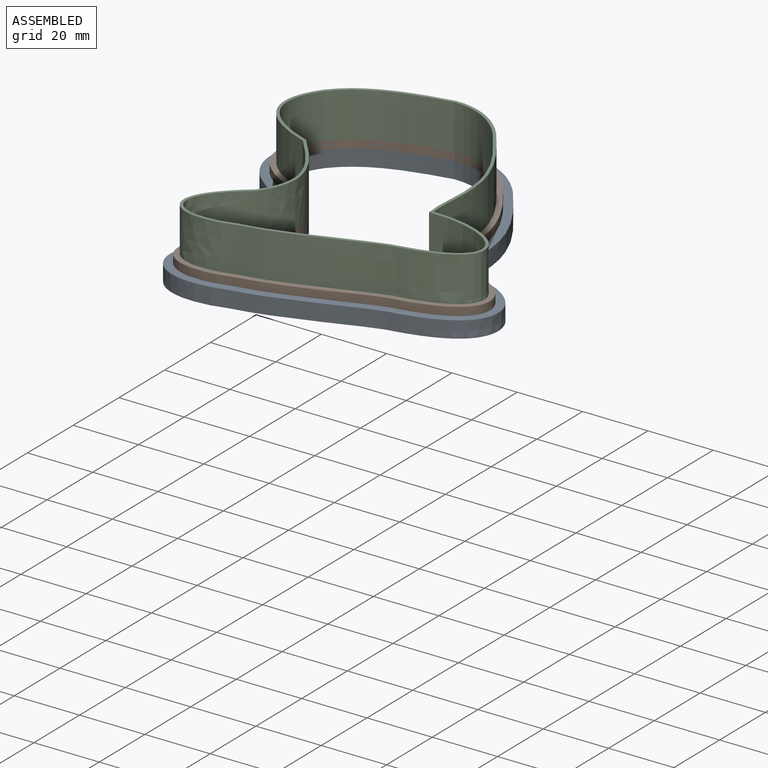
[diagram: assembled view]
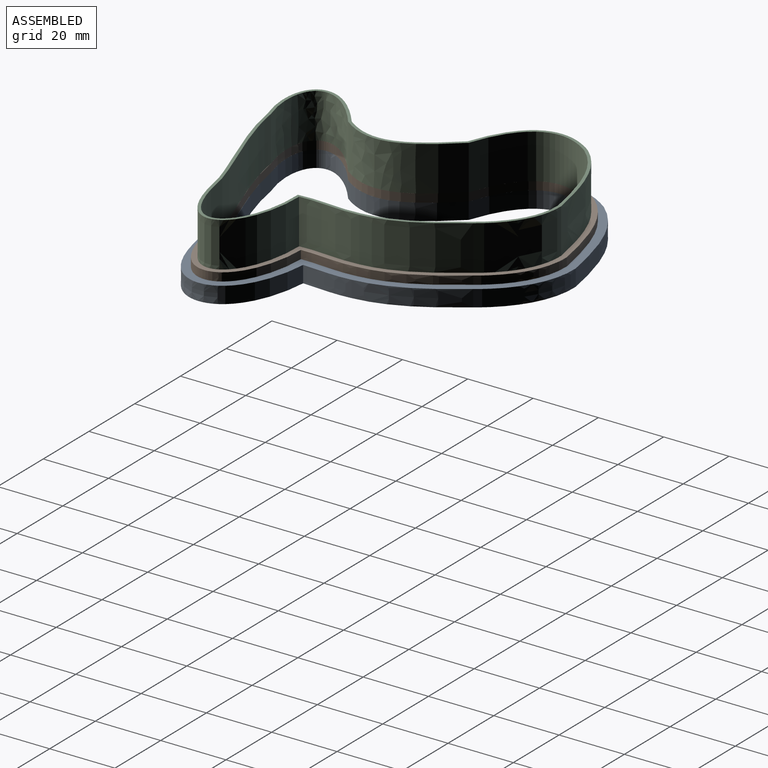
[diagram: assembled view, second angle]
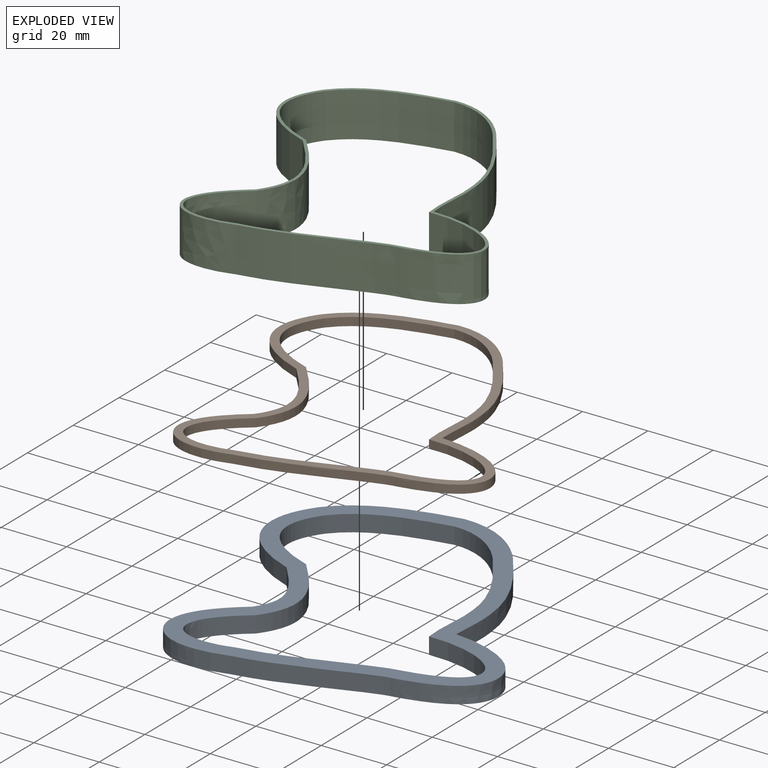
[diagram: exploded view]
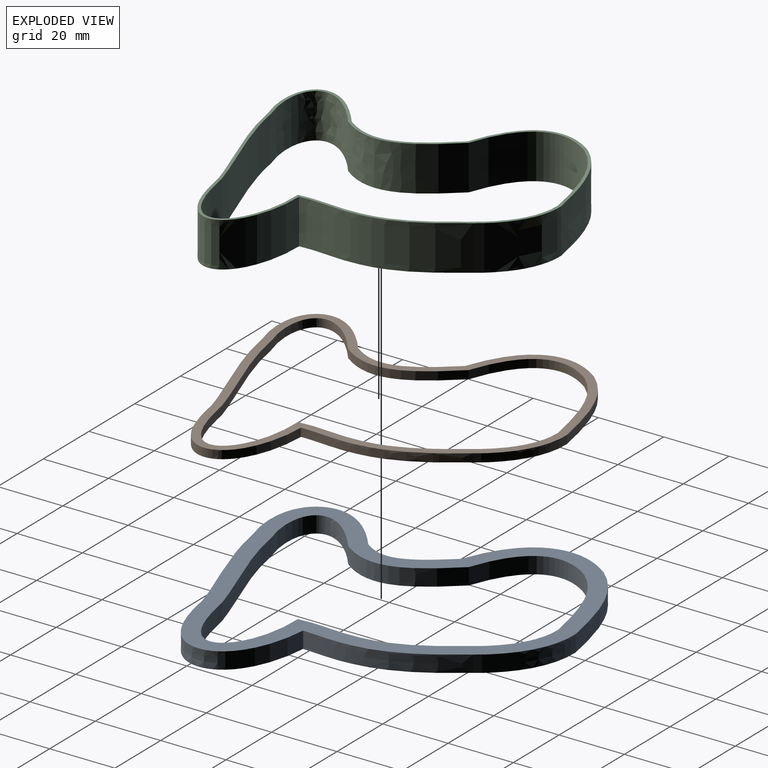
[diagram: exploded view, second angle]
ASSEMBLY  parts=3 mates=2
PART A: 20 faces, bbox 100.4x102x5.1 mm
  f0: plane 101.98x100.35mm, normal (0,0,1), area 1660.7mm2, adj f2,f3,f4,f5,f6,f7,f8,f9
  f1: plane 101.98x100.35mm, normal (0,0,-1), area 1660.7mm2, adj f2,f3,f4,f5,f6,f7,f8,f9
  f2: extruded ~33.98x19.03mm, area 226.5mm2, adj f0,f1,f3,f10
  f3: extruded ~24.04x9.2mm, area 139.7mm2, adj f0,f1,f2,f4
  f4: extruded ~28.79x24.71mm, area 271mm2, adj f0,f1,f3,f5
  f5: extruded ~41.26x12.5mm, area 219.5mm2, adj f0,f1,f4,f6
  f6: extruded ~30.52x23.69mm, area 301.1mm2, adj f0,f1,f5,f7
  f7: extruded ~14.98x5.08mm, area 76.2mm2, adj f0,f1,f6,f8
  f8: extruded ~28.16x13.01mm, area 159.7mm2, adj f0,f1,f7,f9
  f9: extruded ~24.77x14.1mm, area 151.4mm2, adj f0,f1,f8,f10
  f10: extruded ~33.89x15.15mm, area 192.4mm2, adj f0,f1,f2,f9
  f11: extruded ~26.47x16.87mm, area 184mm2, adj f0,f1,f12,f19
  f12: extruded ~31.98x11.36mm, area 185.1mm2, adj f0,f1,f11,f13
  f13: extruded ~20.12x18.45mm, area 204.4mm2, adj f0,f1,f12,f14
  f14: extruded ~41.69x12.57mm, area 221.6mm2, adj f0,f1,f13,f15
  f15: extruded ~23.44x20.53mm, area 248.4mm2, adj f0,f1,f14,f16
  f16: extruded ~19.41x5.08mm, area 98.8mm2, adj f0,f1,f15,f17
  f17: extruded ~25.81x12.13mm, area 146.8mm2, adj f0,f1,f16,f18
  f18: extruded ~20.07x11.91mm, area 123.8mm2, adj f0,f1,f17,f19
  f19: extruded ~30.44x13.23mm, area 172mm2, adj f0,f1,f11,f18
PART B: 20 faces, bbox 97.1x97.8x2.5 mm
  f0: plane 97.84x97.13mm, normal (0,0,1), area 810.5mm2, adj f2,f3,f4,f5,f6,f7,f8,f9
  f1: plane 97.84x97.13mm, normal (0,0,-1), area 810.5mm2, adj f2,f3,f4,f5,f6,f7,f8,f9
  f2: extruded ~30.23x17.96mm, area 102.6mm2, adj f0,f1,f3,f10
  f3: extruded ~28x10.27mm, area 81.1mm2, adj f0,f1,f2,f4
  f4: extruded ~24.46x21.58mm, area 118.9mm2, adj f0,f1,f3,f5
  f5: extruded ~41.47x12.54mm, area 110.2mm2, adj f0,f1,f4,f6
  f6: extruded ~25.58x23.63mm, area 137.6mm2, adj f0,f1,f5,f7
  f7: extruded ~17.13x2.54mm, area 43.6mm2, adj f0,f1,f6,f8
  f8: extruded ~26.98x12.57mm, area 76.6mm2, adj f0,f1,f7,f9
  f9: extruded ~22.42x13.01mm, area 68.7mm2, adj f0,f1,f8,f10
  f10: extruded ~32.17x14.19mm, area 91.2mm2, adj f0,f1,f2,f9
  f11: extruded ~26.47x16.87mm, area 92mm2, adj f0,f1,f12,f19
  f12: extruded ~31.98x11.36mm, area 92.5mm2, adj f0,f1,f11,f13
  f13: extruded ~20.12x18.45mm, area 102.2mm2, adj f0,f1,f12,f14
  f14: extruded ~41.69x12.57mm, area 110.8mm2, adj f0,f1,f13,f15
  f15: extruded ~23.44x20.53mm, area 124.2mm2, adj f0,f1,f14,f16
  f16: extruded ~19.41x2.54mm, area 49.4mm2, adj f0,f1,f15,f17
  f17: extruded ~25.81x12.13mm, area 73.4mm2, adj f0,f1,f16,f18
  f18: extruded ~20.07x11.91mm, area 61.9mm2, adj f0,f1,f17,f19
  f19: extruded ~30.44x13.23mm, area 86mm2, adj f0,f1,f11,f18
PART C: 20 faces, bbox 97.1x96.8x14.3 mm
  f0: plane 97.15x96.78mm, normal (0,0,1), area 280.1mm2, adj f2,f3,f4,f5,f6,f7,f8,f9
  f1: plane 97.15x96.78mm, normal (0,0,-1), area 280.1mm2, adj f2,f3,f4,f5,f6,f7,f8,f9
  f2: extruded ~27.79x17.26mm, area 516.8mm2, adj f0,f1,f3,f10
  f3: extruded ~30.59x13.72mm, area 478mm2, adj f0,f1,f2,f4
  f4: extruded ~21.64x19.55mm, area 583.4mm2, adj f0,f1,f3,f5
  f5: extruded ~41.61x13.72mm, area 597.1mm2, adj f0,f1,f4,f6
  f6: extruded ~23.54x22.3mm, area 696.4mm2, adj f0,f1,f5,f7
  f7: extruded ~18.6x13.72mm, area 255.5mm2, adj f0,f1,f6,f8
  f8: extruded ~26.22x13.72mm, area 402.6mm2, adj f0,f1,f7,f9
  f9: extruded ~20.9x13.72mm, area 347.2mm2, adj f0,f1,f8,f10
  f10: extruded ~31.04x13.72mm, area 474.1mm2, adj f0,f1,f2,f9
  f11: extruded ~26.47x16.87mm, area 496.7mm2, adj f0,f1,f12,f19
  f12: extruded ~31.98x13.72mm, area 499.7mm2, adj f0,f1,f11,f13
  f13: extruded ~20.12x18.45mm, area 551.9mm2, adj f0,f1,f12,f14
  f14: extruded ~41.69x13.72mm, area 598.2mm2, adj f0,f1,f13,f15
  f15: extruded ~23.44x20.53mm, area 670.7mm2, adj f0,f1,f14,f16
  f16: extruded ~19.41x13.72mm, area 266.7mm2, adj f0,f1,f15,f17
  f17: extruded ~25.81x13.72mm, area 396.5mm2, adj f0,f1,f16,f18
  f18: extruded ~20.07x13.72mm, area 334.1mm2, adj f0,f1,f17,f19
  f19: extruded ~30.44x13.72mm, area 464.4mm2, adj f0,f1,f11,f18
PLACE A at identity
PLACE B t=(190.65,0.71,5.08)mm
PLACE C t=(94.05,8.34,7.62)mm
MATE fastened C.f1 <-> B.f0  axis (0,0,1) through (64.11,13.22,7.62)mm
MATE fastened B.f1 <-> A.f0  axis (0,0,1) through (64.11,13.22,5.08)mm
